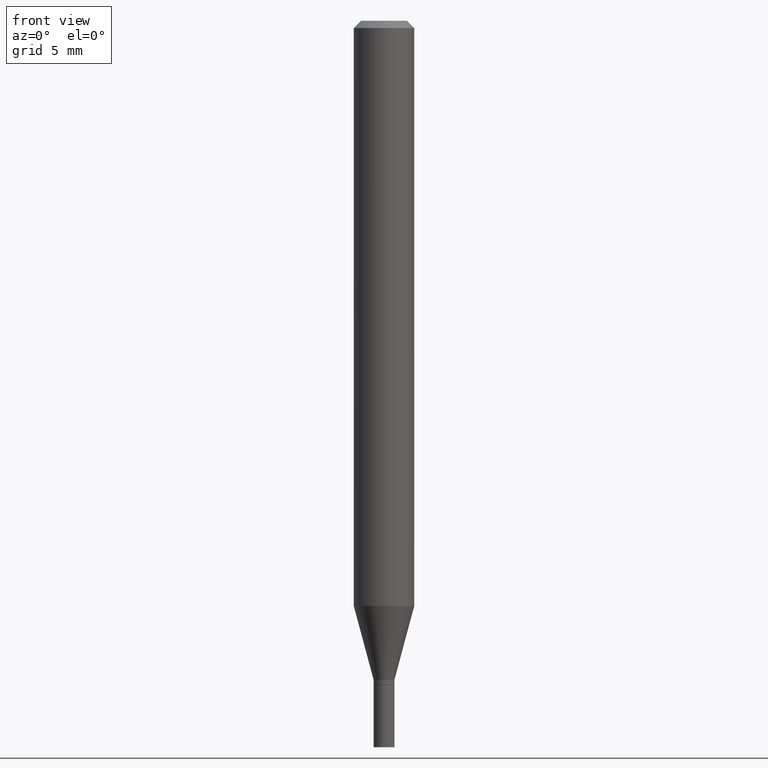
[diagram: clean part render]
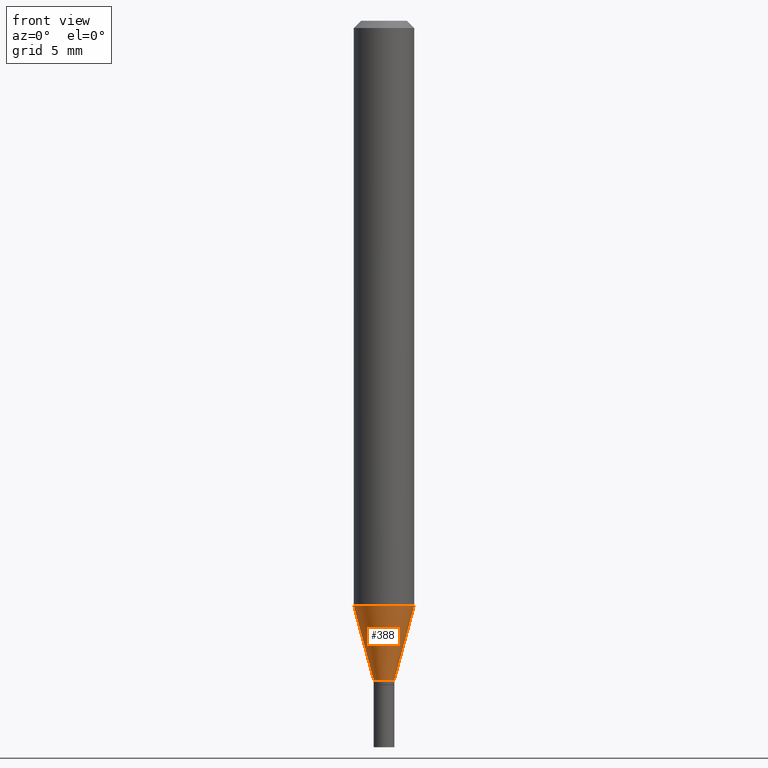
[diagram: same view with one face highlighted and labeled with its STEP entity id]
A machine part, front view. The second image highlights one B-rep face of the part: STEP entity #388.
In plain terms, the highlighted conical surface has half-angle 15 deg.
Its self-contained STEP definition (entity closure, byte-faithful):
#3 = EDGE_CURVE ( 'NONE', #466, #193, #260, .T. ) ;
#40 = CARTESIAN_POINT ( 'NONE',  ( 3.328283045217970545E-29, -4.751906102165520463E-15, -1.360999999999999988 ) ) ;
#42 = DIRECTION ( 'NONE',  ( -0.2588190451025214611, 5.211531920934550253E-15, 0.9659258262890679791 ) ) ;
#85 = VECTOR ( 'NONE', #42, 39.37007874015748143 ) ;
#88 = LINE ( 'NONE', #307, #167 ) ;
#98 = EDGE_LOOP ( 'NONE', ( #255, #426, #434, #330 ) ) ;
#100 = DIRECTION ( 'NONE',  ( -2.445468806185136597E-29, 3.491481338843145583E-15, 1.000000000000000000 ) ) ;
#115 = DIRECTION ( 'NONE',  ( 1.000000000000000000, -6.982962677686262766E-15, 0.000000000000000000 ) ) ;
#134 = AXIS2_PLACEMENT_3D ( 'NONE', #342, #444, #115 ) ;
#163 = VERTEX_POINT ( 'NONE', #168 ) ;
#167 = VECTOR ( 'NONE', #447, 39.37007874015748143 ) ;
#168 = CARTESIAN_POINT ( 'NONE',  ( 0.06249999999999999306, -4.654095453761022619E-15, -1.207985916889676270 ) ) ;
#183 = CONICAL_SURFACE ( 'NONE', #264, 0.02149999999999991848, 0.2617993877991501850 ) ;
#192 = EDGE_CURVE ( 'NONE', #328, #163, #254, .T. ) ;
#193 = VERTEX_POINT ( 'NONE', #273 ) ;
#218 = CARTESIAN_POINT ( 'NONE',  ( -0.06249999999999999306, -3.773571076555568334E-15, -1.207985916889676270 ) ) ;
#225 = EDGE_CURVE ( 'NONE', #466, #328, #373, .T. ) ;
#247 = DIRECTION ( 'NONE',  ( 1.000000000000000000, -6.982962677686246200E-15, 0.000000000000000000 ) ) ;
#254 = CIRCLE ( 'NONE', #134, 0.06250000000000000000 ) ;
#255 = ORIENTED_EDGE ( 'NONE', *, *, #225, .F. ) ;
#260 = CIRCLE ( 'NONE', #412, 0.02149999999999991848 ) ;
#264 = AXIS2_PLACEMENT_3D ( 'NONE', #40, #438, #329 ) ;
#269 = EDGE_CURVE ( 'NONE', #193, #163, #88, .T. ) ;
#273 = CARTESIAN_POINT ( 'NONE',  ( 0.02149999999999991848, -4.902039799735774503E-15, -1.360999999999999988 ) ) ;
#291 = CARTESIAN_POINT ( 'NONE',  ( 3.328283045217970545E-29, -4.751906102165520463E-15, -1.360999999999999988 ) ) ;
#307 = CARTESIAN_POINT ( 'NONE',  ( 0.02149999999999991848, -4.902039799735774503E-15, -1.360999999999999988 ) ) ;
#308 = CARTESIAN_POINT ( 'NONE',  ( -0.02149999999999991848, -4.599139413977099971E-15, -1.360999999999999988 ) ) ;
#328 = VERTEX_POINT ( 'NONE', #218 ) ;
#329 = DIRECTION ( 'NONE',  ( 1.000000000000000000, -6.982962677686246200E-15, 0.000000000000000000 ) ) ;
#330 = ORIENTED_EDGE ( 'NONE', *, *, #192, .F. ) ;
#342 = CARTESIAN_POINT ( 'NONE',  ( 2.954091878064654281E-29, -4.217660286405631739E-15, -1.207985916889676270 ) ) ;
#362 = FACE_OUTER_BOUND ( 'NONE', #98, .T. ) ;
#373 = LINE ( 'NONE', #308, #85 ) ;
#382 = CARTESIAN_POINT ( 'NONE',  ( -0.02149999999999991848, -4.186355245266334152E-15, -1.360999999999999988 ) ) ;
#388 = ADVANCED_FACE ( 'NONE', ( #362 ), #183, .T. ) ;
#412 = AXIS2_PLACEMENT_3D ( 'NONE', #291, #100, #247 ) ;
#426 = ORIENTED_EDGE ( 'NONE', *, *, #3, .T. ) ;
#434 = ORIENTED_EDGE ( 'NONE', *, *, #269, .T. ) ;
#438 = DIRECTION ( 'NONE',  ( -2.445468806185136597E-29, 3.491481338843145583E-15, 1.000000000000000000 ) ) ;
#444 = DIRECTION ( 'NONE',  ( -2.445468806185136597E-29, 3.491481338843145583E-15, 1.000000000000000000 ) ) ;
#447 = DIRECTION ( 'NONE',  ( 0.2588190451025214611, 1.565188264969620982E-15, 0.9659258262890679791 ) ) ;
#466 = VERTEX_POINT ( 'NONE', #382 ) ;